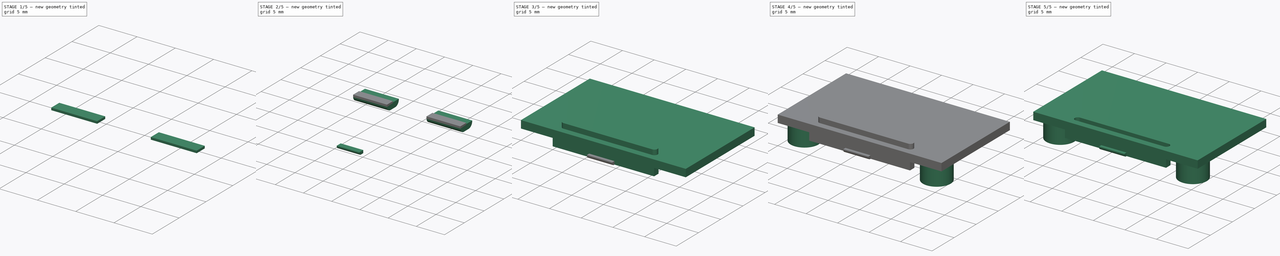
[diagram: build sequence overview — one tinted view per stage of 5, left to right]
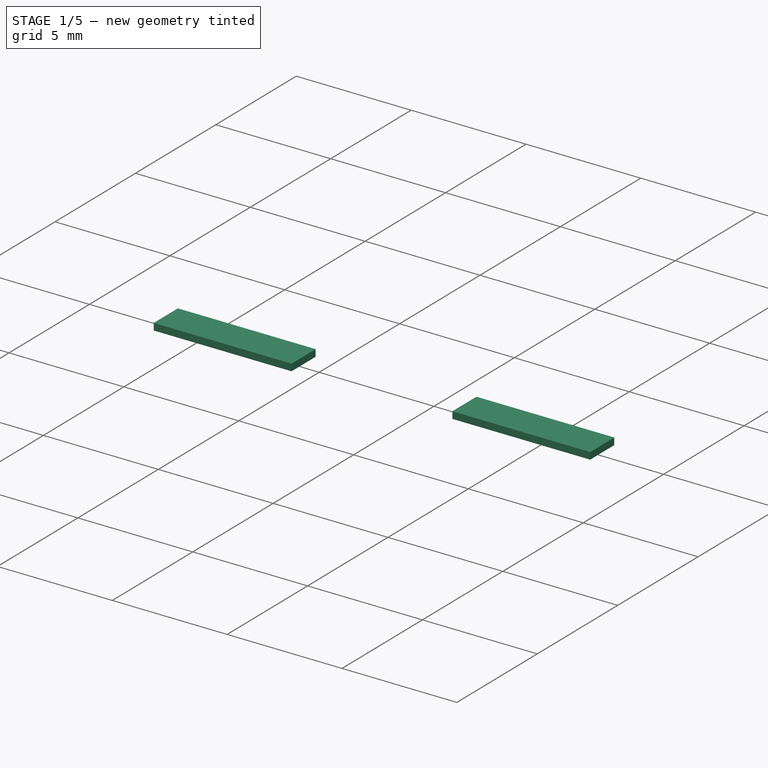
[diagram: stage 1 of 5 — iso view after this stage's code; geometry added in this stage tinted green]
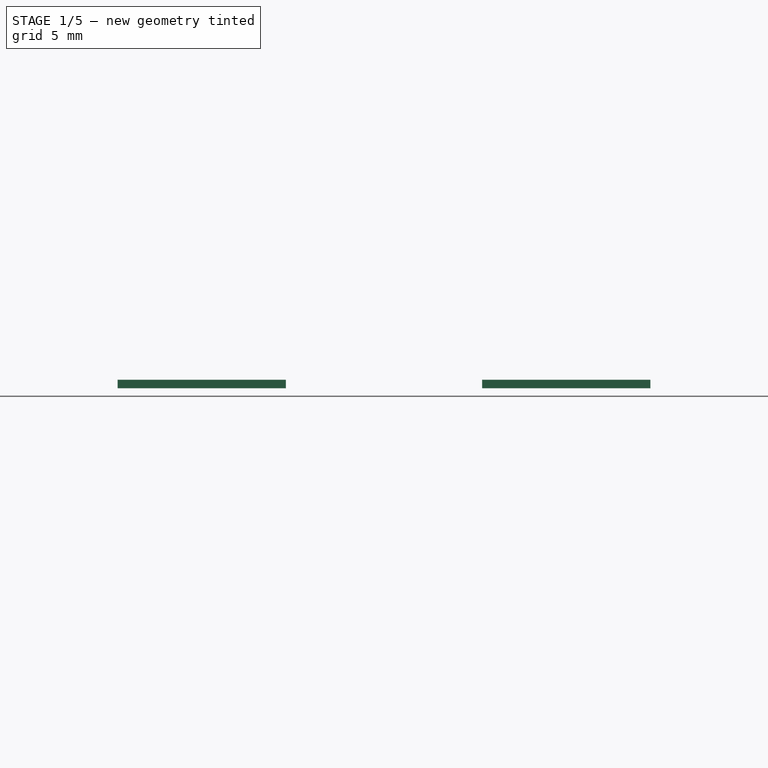
[diagram: stage 1 of 5 — front view after this stage's code; geometry added in this stage tinted green]
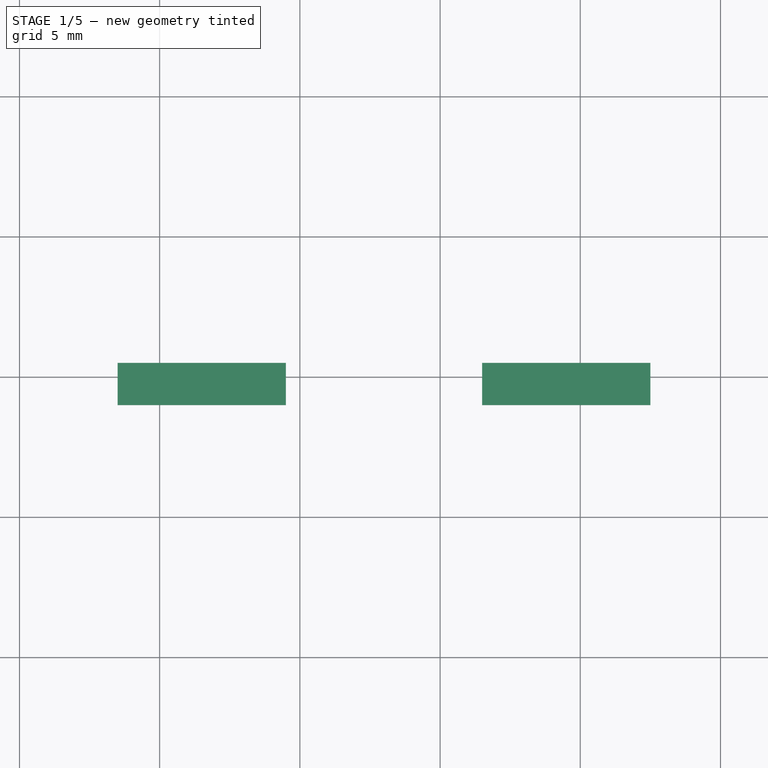
[diagram: stage 1 of 5 — top view after this stage's code; geometry added in this stage tinted green]
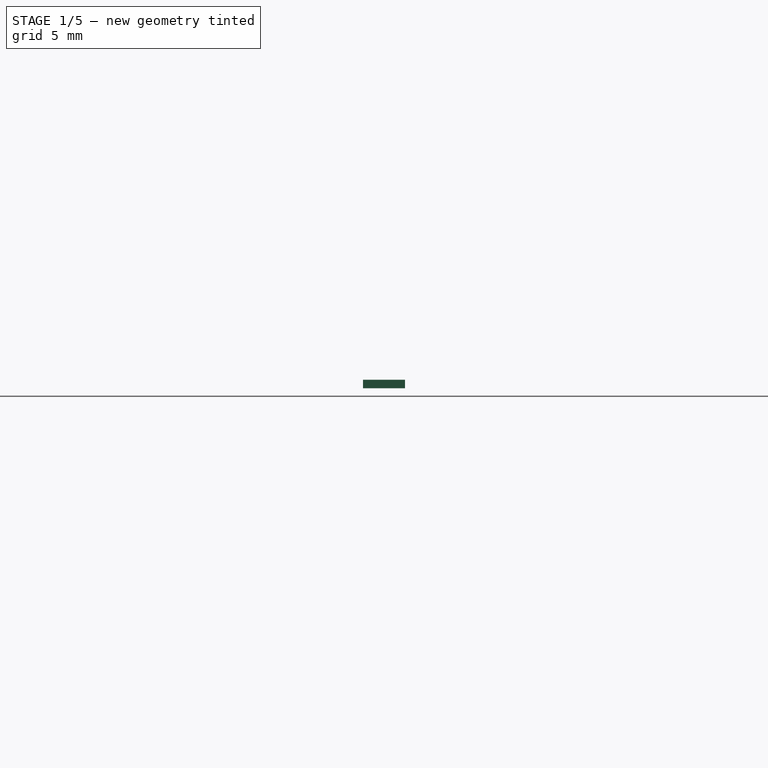
[diagram: stage 1 of 5 — right view after this stage's code; geometry added in this stage tinted green]
FCSTD DOCUMENT  (FreeCAD 0.17R13541 (Git))
Label: TopCover
License: All rights reserved
LicenseURL: http://en.wikipedia.org/wiki/All_rights_reserved
objects: Sketcher::SketchObject×7, Part::Extrusion×7, Part::Fuse×3, Part::Fillet×2, Part::MultiFuse×2, Part::Cut×1
note: 22 computed .brp shape members not serialized (recipe doc carries the construction recipe); baked Part::Feature solids carry a one-line shape summary decoded from their .brp

FEATURE [Part::Extrusion] Extrude001
  Base = -> Sketch001
  Dir = (0,0,1)
  DirMode = 2
  FaceMakerClass = Part::FaceMakerBullseye
  LengthFwd = -0.2
  LengthRev = 1.2
  Solid = true
  Symmetric = false
FEATURE [Part::Fillet] Fillet
  Base = -> Extrude001
  Edges = 4 edges r=0.9: [Edge3,Edge9,Edge15,Edge21]
FEATURE [Sketcher::SketchObject] Sketch007
  MapMode = 2
  Support = -> [Fillet]
  sketch-geometry (9):
    g0: LineSegment StartX=3.5 StartY=15.5 StartZ=0 EndX=9.5 EndY=15.5 EndZ=0
    g1: LineSegment StartX=9.5 StartY=15.5 StartZ=0 EndX=9.5 EndY=14 EndZ=0
    g2: LineSegment StartX=9.5 StartY=14 StartZ=0 EndX=3.5 EndY=14 EndZ=0
    g3: LineSegment StartX=3.5 StartY=14 StartZ=0 EndX=3.5 EndY=15.5 EndZ=0
    g4: LineSegment StartX=16.5 StartY=15.5 StartZ=0 EndX=22.5 EndY=15.5 EndZ=0
    g5: LineSegment StartX=22.5 StartY=15.5 StartZ=0 EndX=22.5 EndY=14 EndZ=0
    g6: LineSegment StartX=22.5 StartY=14 StartZ=0 EndX=16.5 EndY=14 EndZ=0
    g7: LineSegment StartX=16.5 StartY=14 StartZ=0 EndX=16.5 EndY=15.5 EndZ=0
    g8: LineSegment [constr] StartX=9.5 StartY=14 StartZ=0 EndX=16.5 EndY=14 EndZ=0
  constraints (26):
    c: Coincident(g0,g1)
    c: Coincident(g1,g2)
    c: Coincident(g2,g3)
    c: Coincident(g3,g0)
    c: Horizontal(g0)
    c: Horizontal(g2)
    c: Vertical(g1)
    c: Vertical(g3)
    c: DistanceY(g3,g3) = 1.5
    c: DistanceX(g0,g0) = 6
    c: Coincident(g4,g5)
    c: Coincident(g5,g6)
    c: Coincident(g6,g7)
    c: Coincident(g7,g4)
    c: Horizontal(g4)
    c: Horizontal(g6)
    c: Vertical(g5)
    c: Vertical(g7)
    c: Equal(g3,g7) = 1.5
    c: Equal(g0,g4) = 6
    c: DistanceX(g2) = 3.5
    c: DistanceY(g2) = 14
    c: Coincident(g8,g1)
    c: Coincident(g8,g6)
    c: Horizontal(g8)
    c: DistanceX(g8,g8) = 7
FEATURE [Part::Extrusion] Extrude007
  Base = -> Sketch007
  Dir = (0,0,1)
  DirMode = 2
  FaceMakerClass = Part::FaceMakerBullseye
  LengthFwd = 0
  LengthRev = 0.3
  Solid = true
  Symmetric = false
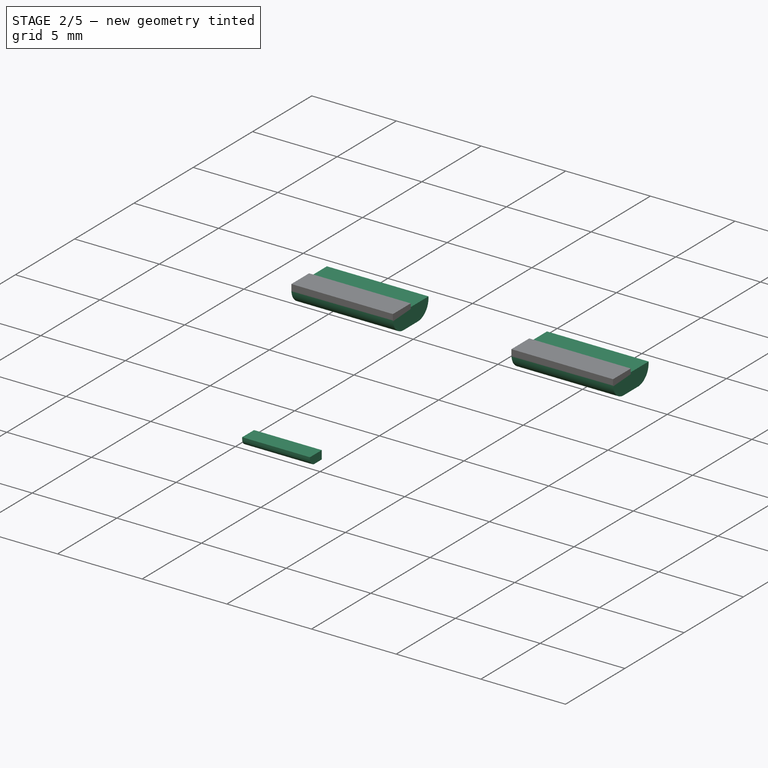
[diagram: stage 2 of 5 — iso view after this stage's code; geometry added in this stage tinted green]
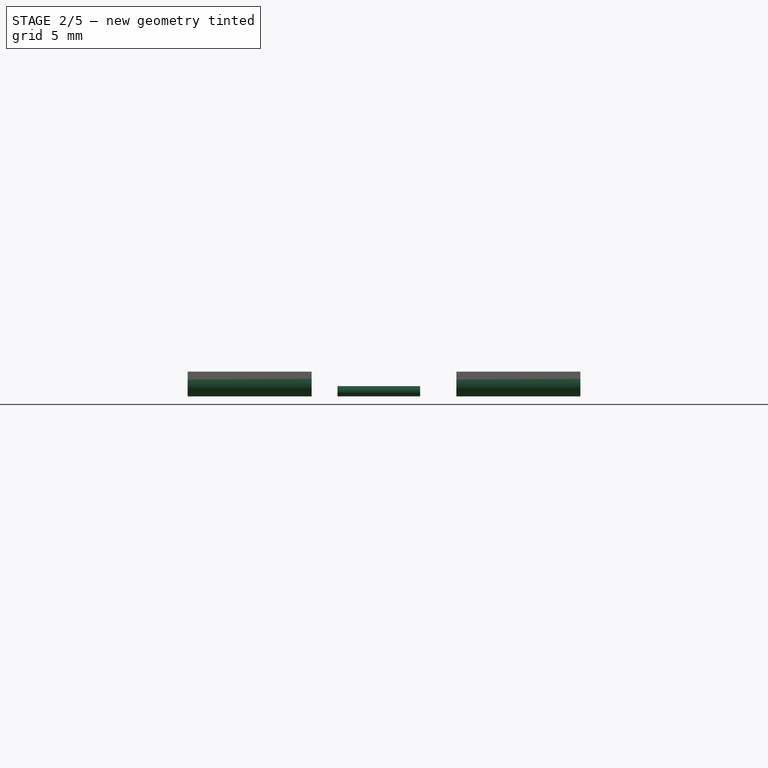
[diagram: stage 2 of 5 — front view after this stage's code; geometry added in this stage tinted green]
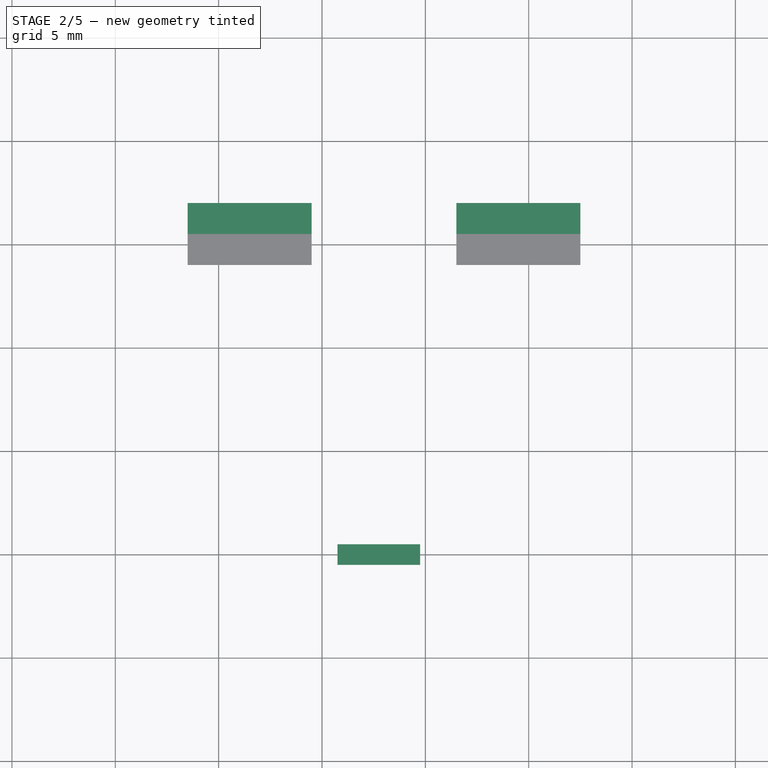
[diagram: stage 2 of 5 — top view after this stage's code; geometry added in this stage tinted green]
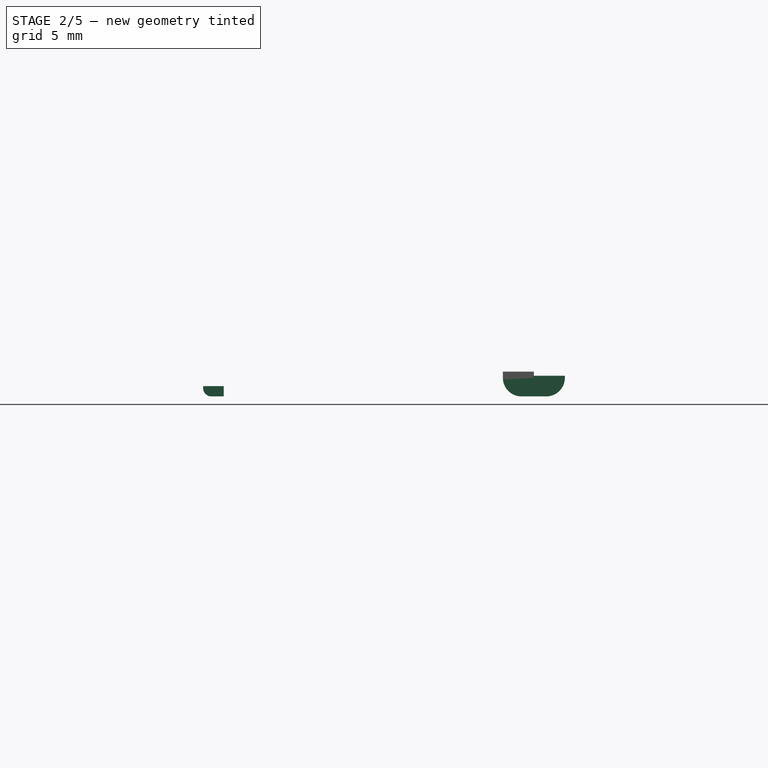
[diagram: stage 2 of 5 — right view after this stage's code; geometry added in this stage tinted green]
FEATURE [Sketcher::SketchObject] Sketch006
  sketch-geometry (8):
    g0: LineSegment StartX=10.75 StartY=0.5 StartZ=0 EndX=14.75 EndY=0.5 EndZ=0
    g1: LineSegment StartX=14.75 StartY=0.5 StartZ=0 EndX=14.75 EndY=-0.5 EndZ=0
    g2: LineSegment StartX=14.75 StartY=-0.5 StartZ=0 EndX=10.75 EndY=-0.5 EndZ=0
    g3: LineSegment StartX=10.75 StartY=-0.5 StartZ=0 EndX=10.75 EndY=0.5 EndZ=0
    g4: LineSegment [constr] StartX=10.75 StartY=0 StartZ=0 EndX=12.75 EndY=0 EndZ=0
    g5: LineSegment [constr] StartX=12.75 StartY=0 StartZ=0 EndX=14.75 EndY=0 EndZ=0
    g6: LineSegment [constr] StartX=0 StartY=0 StartZ=0 EndX=12.75 EndY=0 EndZ=0
    g7: LineSegment [constr] StartX=12.75 StartY=0 StartZ=0 EndX=25.5 EndY=0 EndZ=0
  constraints (24):
    c: Coincident(g0,g1)
    c: Coincident(g1,g2)
    c: Coincident(g2,g3)
    c: Coincident(g3,g0)
    c: Horizontal(g0)
    c: Horizontal(g2)
    c: Vertical(g1)
    c: Vertical(g3)
    c: DistanceY(g3,g3) = 1
    c: DistanceX(g0,g0) = 4
    c: PointOnObject(g4,g3)
    c: Horizontal(g4)
    c: Coincident(g4,g5)
    c: Horizontal(g5)
    c: PointOnObject(g5,g1)
    c: Equal(g4,g5)
    c: Symmetric(g0,g2,g4)
    c: Coincident(g-1,g6)
    c: Coincident(g6,g4)
    c: Horizontal(g6)
    c: Coincident(g6,g7)
    c: Horizontal(g7)
    c: Equal(g6,g7)
    c: Distance(g-1,g7) = 25.5
FEATURE [Part::Extrusion] Extrude006
  Base = -> Sketch006
  Dir = (0,0,1)
  DirMode = 2
  FaceMakerClass = Part::FaceMakerBullseye
  LengthFwd = -0.7
  LengthRev = 1.2
  Solid = true
  Symmetric = false
FEATURE [Part::Fillet] Fillet001
  Base = -> Extrude006
  Edges = 1 edges r=0.4: [Edge9]
FEATURE [Part::MultiFuse] Fusion005
  Shapes = -> [Fillet,Extrude007]
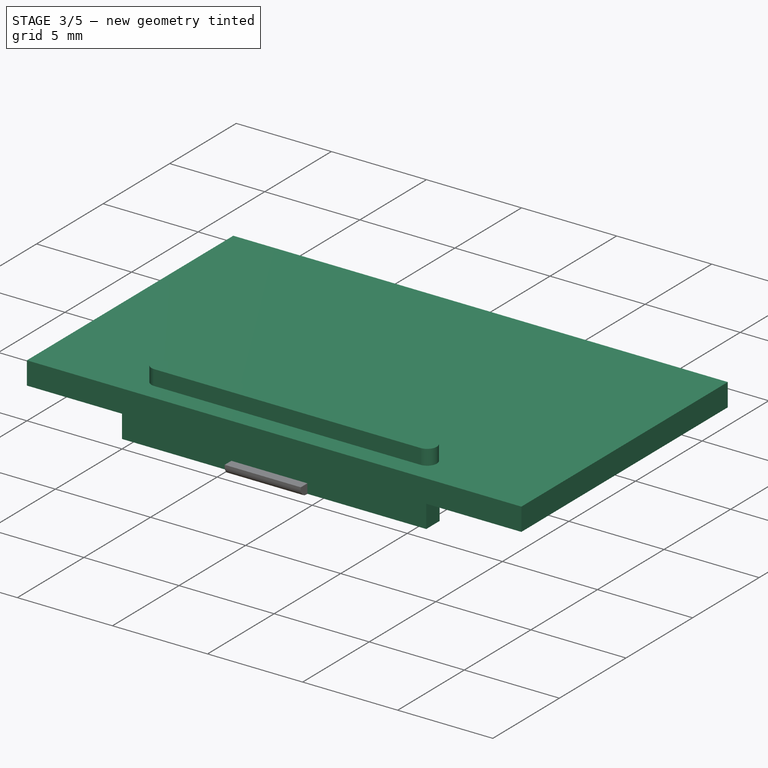
[diagram: stage 3 of 5 — iso view after this stage's code; geometry added in this stage tinted green]
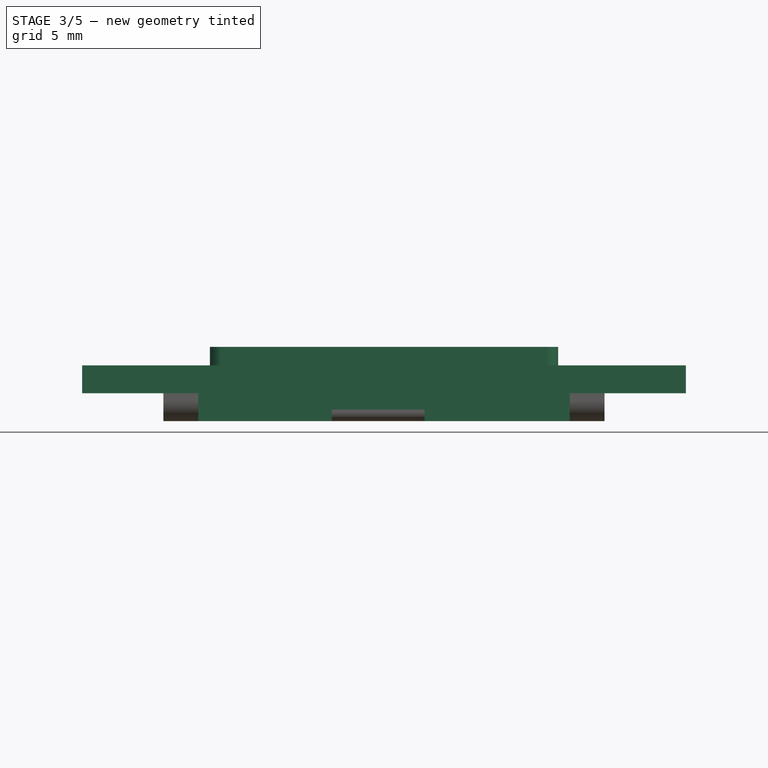
[diagram: stage 3 of 5 — front view after this stage's code; geometry added in this stage tinted green]
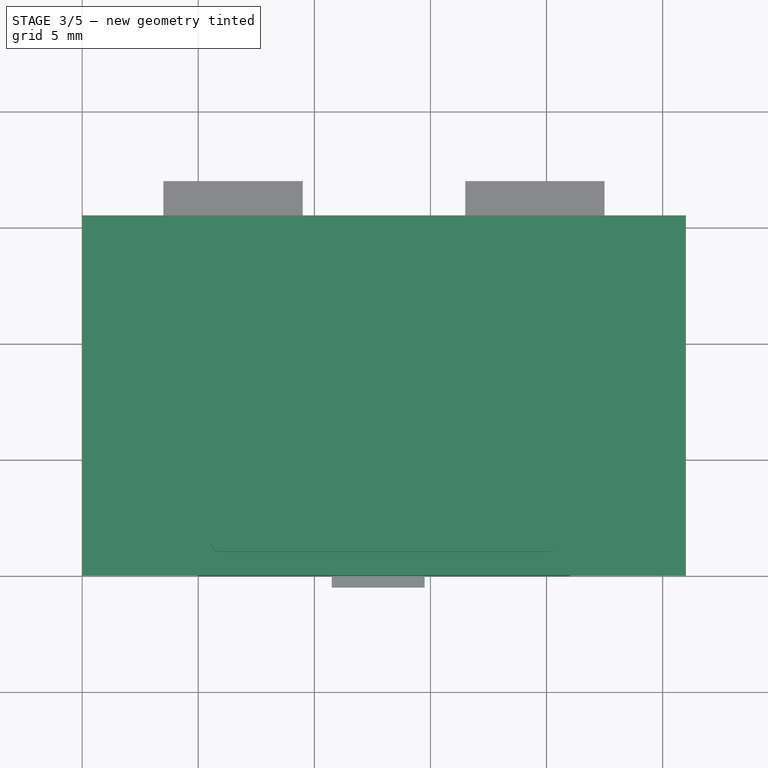
[diagram: stage 3 of 5 — top view after this stage's code; geometry added in this stage tinted green]
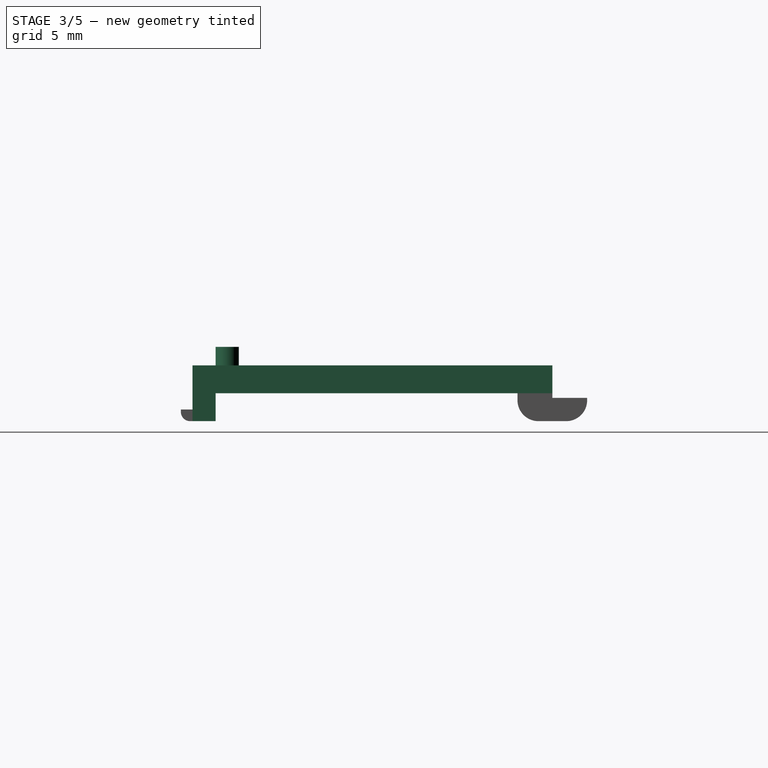
[diagram: stage 3 of 5 — right view after this stage's code; geometry added in this stage tinted green]
FEATURE [Sketcher::SketchObject] Sketch
  sketch-geometry (4):
    g0: LineSegment StartX=0 StartY=15.5 StartZ=0 EndX=26 EndY=15.5 EndZ=0
    g1: LineSegment StartX=26 StartY=15.5 StartZ=0 EndX=26 EndY=0 EndZ=0
    g2: LineSegment StartX=26 StartY=0 StartZ=0 EndX=0 EndY=0 EndZ=0
    g3: LineSegment StartX=0 StartY=0 StartZ=0 EndX=0 EndY=15.5 EndZ=0
  constraints (12):
    c: Coincident(g0,g1)
    c: Coincident(g1,g2)
    c: Coincident(g2,g3)
    c: Coincident(g3,g0)
    c: Horizontal(g0)
    c: Horizontal(g2)
    c: Vertical(g1)
    c: Vertical(g3)
    c: DistanceX(g2) = 0
    c: DistanceY(g2) = 0
    c: DistanceY(g3,g3) = 15.5
    c: DistanceX(g0,g0) = 26
FEATURE [Sketcher::SketchObject] Sketch001
  MapMode = 2
  Support = -> [Sketch]
  sketch-geometry (15):
    g0: LineSegment [constr] StartX=0 StartY=15.5 StartZ=0 EndX=26 EndY=15.5 EndZ=0
    g1: LineSegment StartX=3.5 StartY=17 StartZ=0 EndX=9.5 EndY=17 EndZ=0
    g2: LineSegment StartX=9.5 StartY=17 StartZ=0 EndX=9.5 EndY=14 EndZ=0
    g3: LineSegment StartX=9.5 StartY=14 StartZ=0 EndX=3.5 EndY=14 EndZ=0
    g4: LineSegment StartX=3.5 StartY=14 StartZ=0 EndX=3.5 EndY=17 EndZ=0
    g5: LineSegment [constr] StartX=6.5 StartY=17 StartZ=0 EndX=6.5 EndY=15.5 EndZ=0
    g6: LineSegment [constr] StartX=6.5 StartY=15.5 StartZ=0 EndX=6.5 EndY=14 EndZ=0
    g7: LineSegment StartX=16.5 StartY=17 StartZ=0 EndX=22.5 EndY=17 EndZ=0
    g8: LineSegment StartX=22.5 StartY=17 StartZ=0 EndX=22.5 EndY=14 EndZ=0
    g9: LineSegment StartX=22.5 StartY=14 StartZ=0 EndX=16.5 EndY=14 EndZ=0
    g10: LineSegment StartX=16.5 StartY=14 StartZ=0 EndX=16.5 EndY=17 EndZ=0
    g11: LineSegment [constr] StartX=19.5 StartY=17 StartZ=0 EndX=19.5 EndY=15.5 EndZ=0
    g12: LineSegment [constr] StartX=19.5 StartY=15.5 StartZ=0 EndX=19.5 EndY=14 EndZ=0
    g13: LineSegment [constr] StartX=6.5 StartY=15.5 StartZ=0 EndX=13 EndY=15.5 EndZ=0
    g14: LineSegment [constr] StartX=19.5 StartY=15.5 StartZ=0 EndX=13 EndY=15.5 EndZ=0
  constraints (47):
    c: PointOnObject(g0,g-2)
    c: Horizontal(g0)
    c: Distance(g0,g-1) = 15.5
    c: Distance(g0) = 26
    c: PointOnObject(g13,g0)
    c: Coincident(g1,g2)
    c: Coincident(g2,g3)
    c: Coincident(g3,g4)
    c: Coincident(g4,g1)
    c: Horizontal(g1)
    c: Horizontal(g3)
    c: Vertical(g2)
    c: Vertical(g4)
    c: PointOnObject(g5,g1)
    c: Vertical(g5)
    c: Coincident(g6,g5)
    c: PointOnObject(g6,g3)
    c: Vertical(g6)
    c: Equal(g5,g6)
    c: DistanceY(g5,g5) = 1.5
    c: DistanceX(g1,g1) = 6
    c: Coincident(g7,g8)
    c: Coincident(g8,g9)
    c: Coincident(g9,g10)
    c: Coincident(g10,g7)
    c: Horizontal(g7)
    c: Horizontal(g9)
    c: Vertical(g8)
    c: Vertical(g10)
    c: PointOnObject(g11,g7)
    c: Vertical(g11)
    c: Coincident(g12,g11)
    c: PointOnObject(g12,g9)
    c: Vertical(g12)
    c: Equal(g11,g12)
    c: Equal(g5,g11) = 1.5
    c: Equal(g1,g7) = 6
    c: Coincident(g13,g5)
    c: Horizontal(g13)
    c: Coincident(g14,g11)
    c: Coincident(g14,g13)
    c: Horizontal(g14)
    c: DistanceX(g14,g14) = 6.5
    c: Equal(g13,g14)
    c: Symmetric(g7,g7,g11)
    c: Symmetric(g1,g1,g5)
    c: Symmetric(g0,g0,g13)
FEATURE [Part::Extrusion] Extrude
  Base = -> Sketch
  Dir = (0,0,1)
  DirMode = 2
  FaceMakerClass = Part::FaceMakerBullseye
  LengthFwd = 1.2
  LengthRev = 0
  Solid = true
  Symmetric = false
FEATURE [Sketcher::SketchObject] Sketch004
  sketch-geometry (4):
    g0: ArcOfCircle CenterX=6 CenterY=1.5 CenterZ=0 NormalX=0 NormalY=0 NormalZ=1 AngleXU=0 Radius=0.5 StartAngle=1.5708 EndAngle=4.71239
    g1: ArcOfCircle CenterX=20 CenterY=1.5 CenterZ=0 NormalX=0 NormalY=0 NormalZ=1 AngleXU=0 Radius=0.5 StartAngle=4.71239 EndAngle=7.85398
    g2: LineSegment StartX=6 StartY=1 StartZ=0 EndX=20 EndY=1 EndZ=0
    g3: LineSegment StartX=6 StartY=2 StartZ=0 EndX=20 EndY=2 EndZ=0
  constraints (10):
    c: Tangent(g0,g3) = 1.5708
    c: Tangent(g0,g2) = -1.5708
    c: Tangent(g2,g1) = -1.5708
    c: Tangent(g3,g1) = 1.5708
    c: Horizontal(g2)
    c: Equal(g0,g1)
    c: Radius(g1) = 0.5
    c: Distance(g0,g1) = 14
    c: DistanceX(g0) = 6
    c: DistanceY(g0) = 1.5
FEATURE [Part::Extrusion] Extrude004
  Base = -> Sketch004
  Dir = (0,0,1)
  DirMode = 2
  FaceMakerClass = Part::FaceMakerBullseye
  LengthFwd = 2
  LengthRev = 0
  Solid = true
  Symmetric = false
FEATURE [Sketcher::SketchObject] Sketch005
  sketch-geometry (4):
    g0: LineSegment StartX=5 StartY=1 StartZ=0 EndX=21 EndY=1 EndZ=0
    g1: LineSegment StartX=21 StartY=1 StartZ=0 EndX=21 EndY=0 EndZ=0
    g2: LineSegment StartX=21 StartY=0 StartZ=0 EndX=5 EndY=0 EndZ=0
    g3: LineSegment StartX=5 StartY=0 StartZ=0 EndX=5 EndY=1 EndZ=0
  constraints (12):
    c: Coincident(g0,g1)
    c: Coincident(g1,g2)
    c: Coincident(g2,g3)
    c: Coincident(g3,g0)
    c: Horizontal(g0)
    c: Horizontal(g2)
    c: Vertical(g1)
    c: Vertical(g3)
    c: DistanceX(g2) = 5
    c: DistanceY(g2) = 0
    c: DistanceY(g3,g3) = 1
    c: DistanceX(g0,g0) = 16
FEATURE [Part::Extrusion] Extrude005
  Base = -> Sketch005
  Dir = (0,0,1)
  DirMode = 2
  FaceMakerClass = Part::FaceMakerBullseye
  LengthFwd = 0
  LengthRev = 1.2
  Solid = true
  Symmetric = false
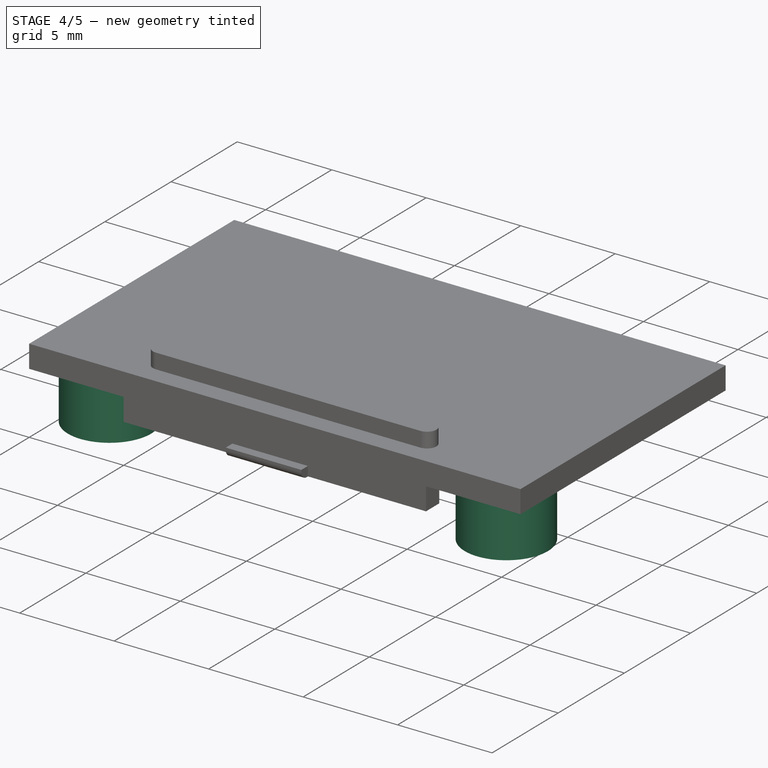
[diagram: stage 4 of 5 — iso view after this stage's code; geometry added in this stage tinted green]
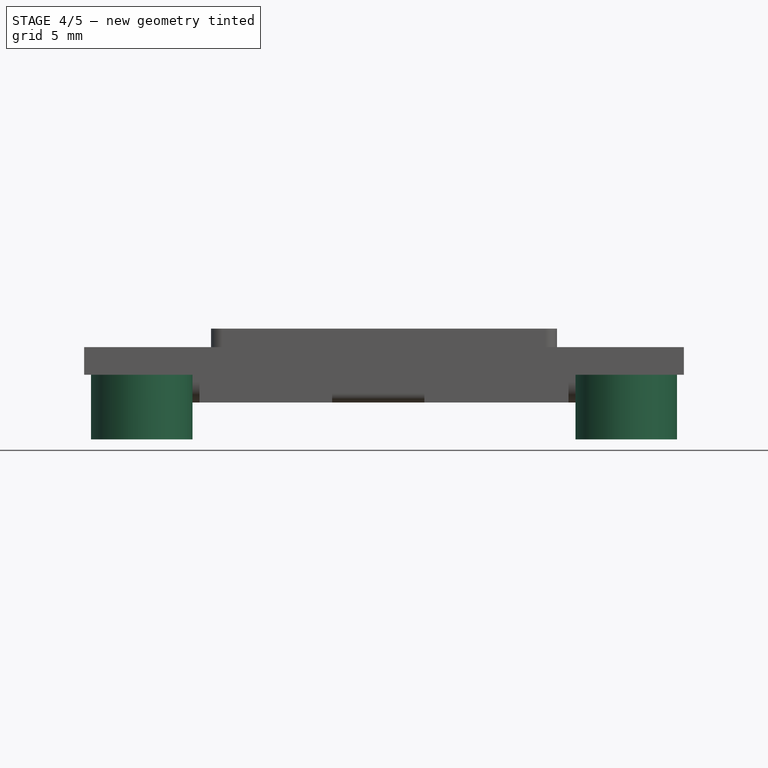
[diagram: stage 4 of 5 — front view after this stage's code; geometry added in this stage tinted green]
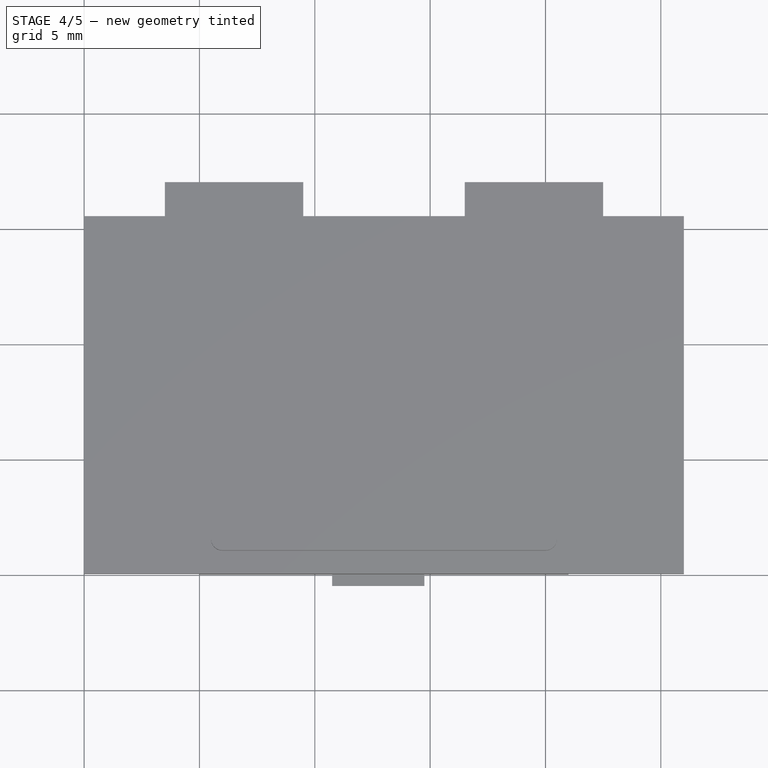
[diagram: stage 4 of 5 — top view after this stage's code; geometry added in this stage tinted green]
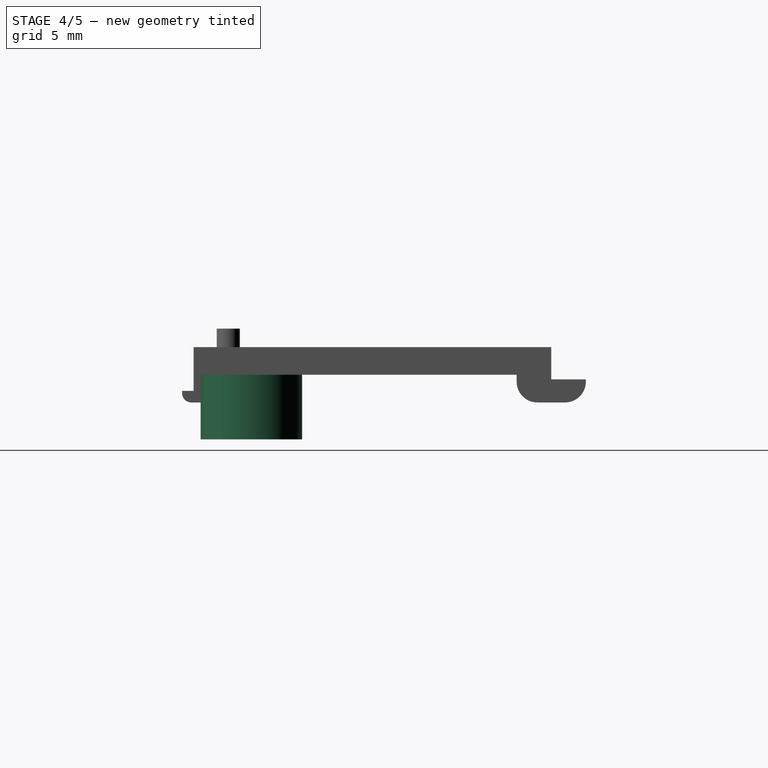
[diagram: stage 4 of 5 — right view after this stage's code; geometry added in this stage tinted green]
FEATURE [Sketcher::SketchObject] Sketch002
  sketch-geometry (3):
    g0: Circle CenterX=2.5 CenterY=2.5 CenterZ=0 NormalX=0 NormalY=0 NormalZ=1 AngleXU=0 Radius=2.2
    g1: Circle CenterX=23.5 CenterY=2.5 CenterZ=0 NormalX=0 NormalY=0 NormalZ=1 AngleXU=0 Radius=2.2
    g2: LineSegment [constr] StartX=2.5 StartY=2.5 StartZ=0 EndX=23.5 EndY=2.5 EndZ=0
  constraints (8):
    c: Coincident(g2,g0)
    c: Coincident(g1,g2)
    c: Horizontal(g2)
    c: DistanceX(g0) = 2.5
    c: DistanceY(g0) = 2.5
    c: Radius(g0) = 2.2
    c: Equal(g0,g1)
    c: DistanceX(g2,g2) = 21
FEATURE [Part::Extrusion] Extrude002
  Base = -> Sketch002
  Dir = (0,0,1)
  DirMode = 2
  FaceMakerClass = Part::FaceMakerBullseye
  LengthFwd = 0
  LengthRev = 2.8
  Solid = true
  Symmetric = false
FEATURE [Part::Fuse] Fusion
  Base = -> Extrude
  Tool = -> Fusion005
FEATURE [Part::Fuse] Fusion001
  Base = -> Fusion
  Tool = -> Extrude002
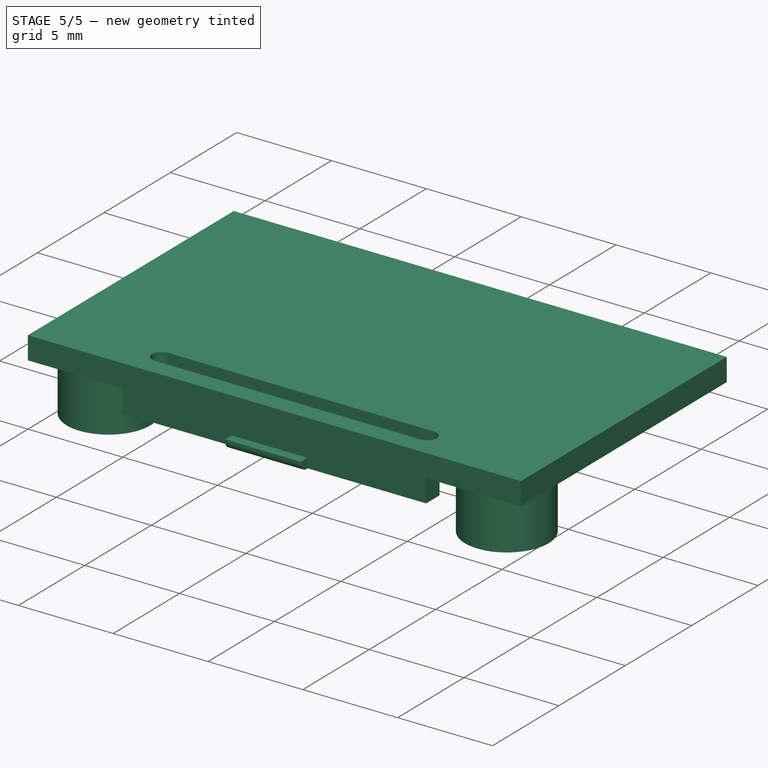
[diagram: stage 5 of 5 — iso view after this stage's code; geometry added in this stage tinted green]
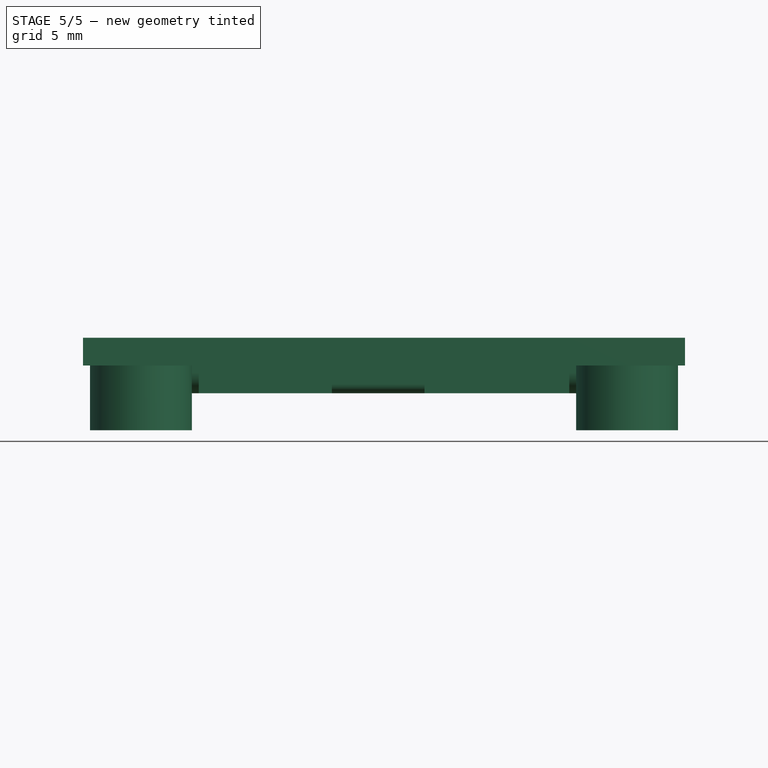
[diagram: stage 5 of 5 — front view after this stage's code; geometry added in this stage tinted green]
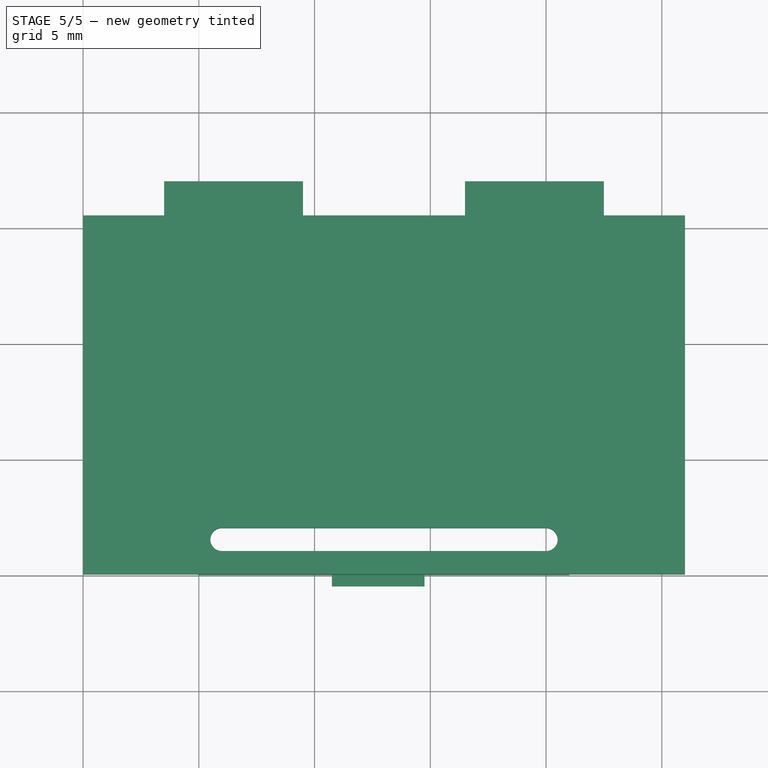
[diagram: stage 5 of 5 — top view after this stage's code; geometry added in this stage tinted green]
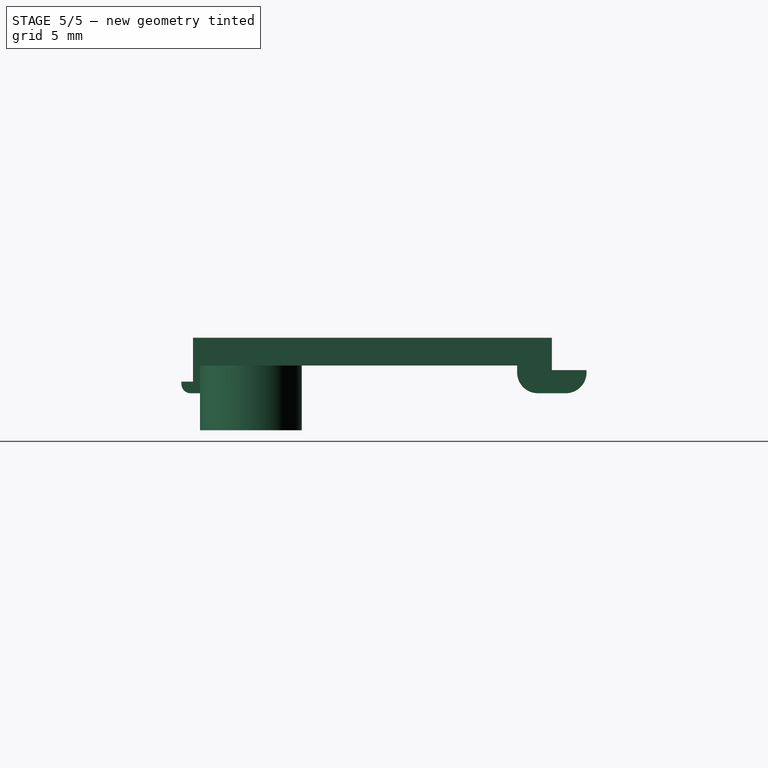
[diagram: stage 5 of 5 — right view after this stage's code; geometry added in this stage tinted green]
FEATURE [Part::Cut] Cut001
  Base = -> Fusion001
  Tool = -> Extrude004
FEATURE [Part::MultiFuse] Fusion003
  Shapes = -> [Cut001,Extrude005]
FEATURE [Part::Fuse] Fusion004
  Base = -> Fusion003
  Tool = -> Fillet001
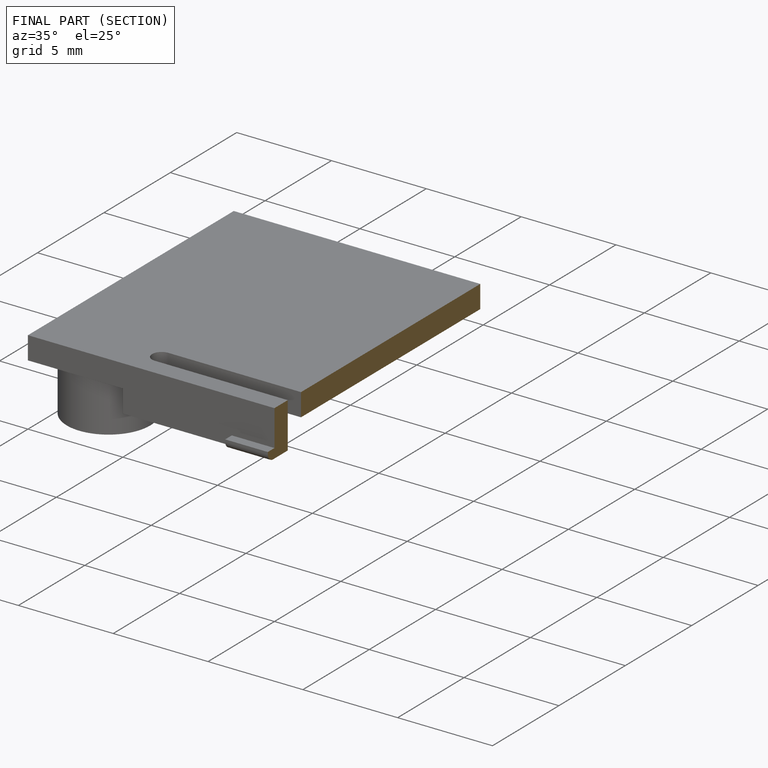
[diagram: finished part — half-section view (interior)]
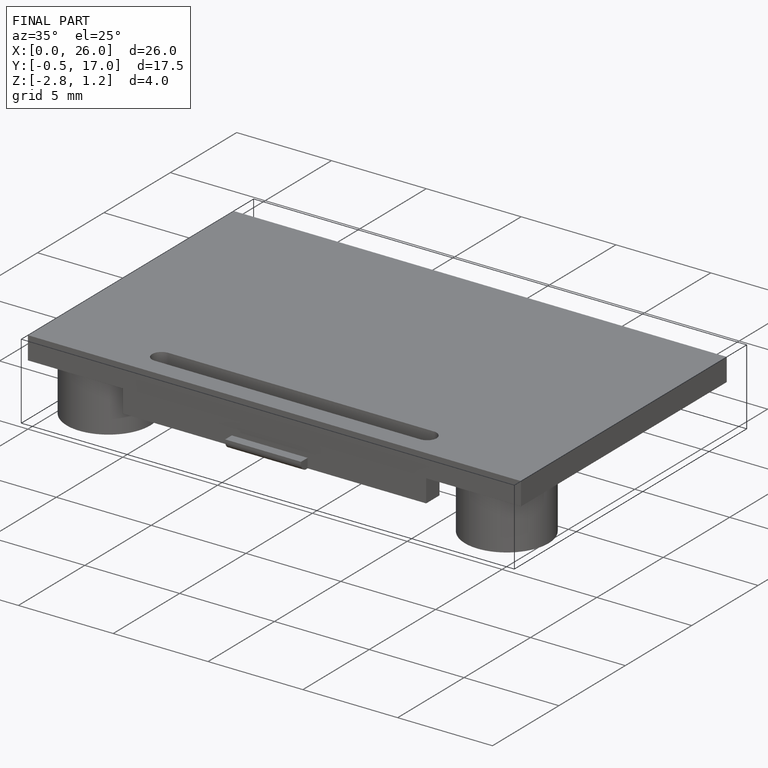
[diagram: finished part — iso view with bounding-box wireframe]
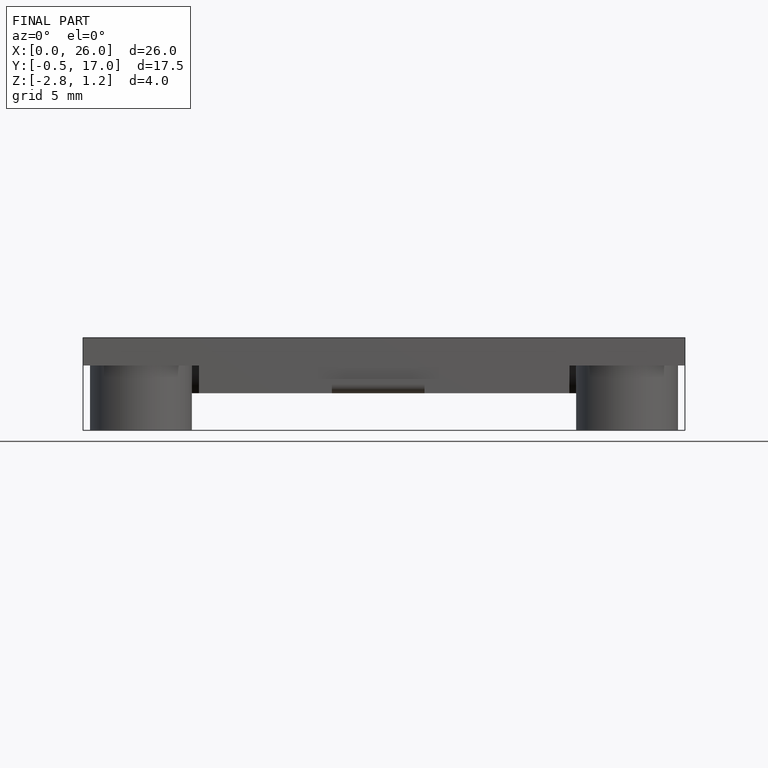
[diagram: finished part — front view with bounding-box wireframe]
